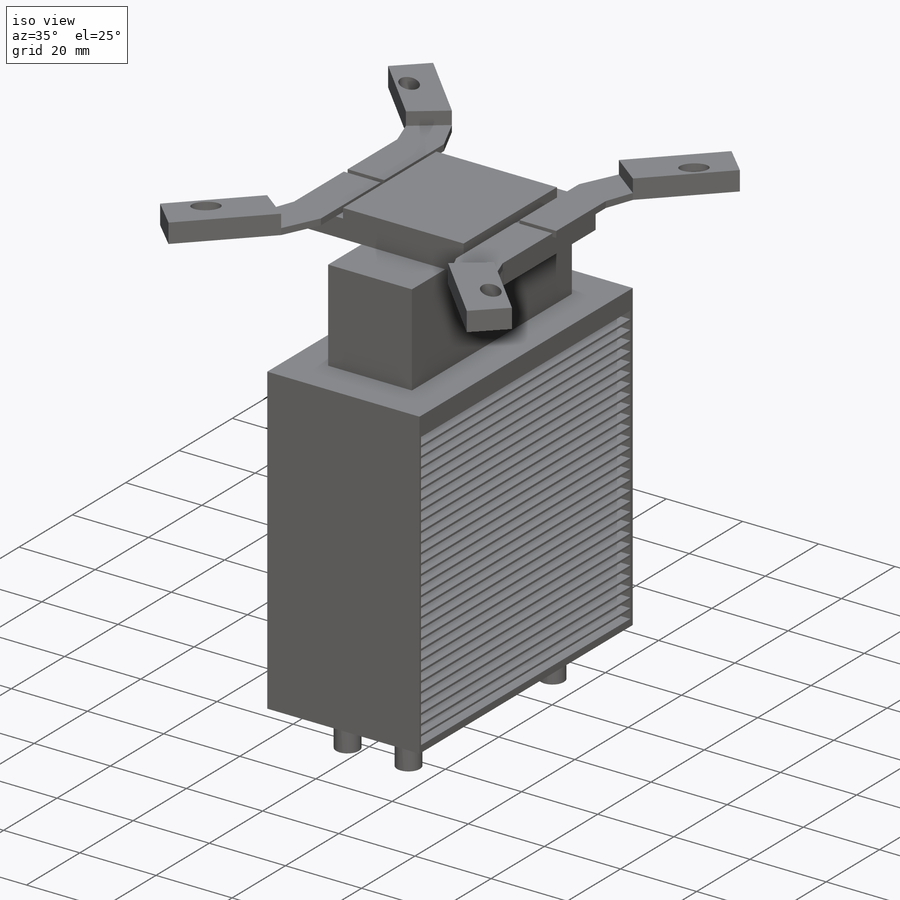
[diagram: iso view]
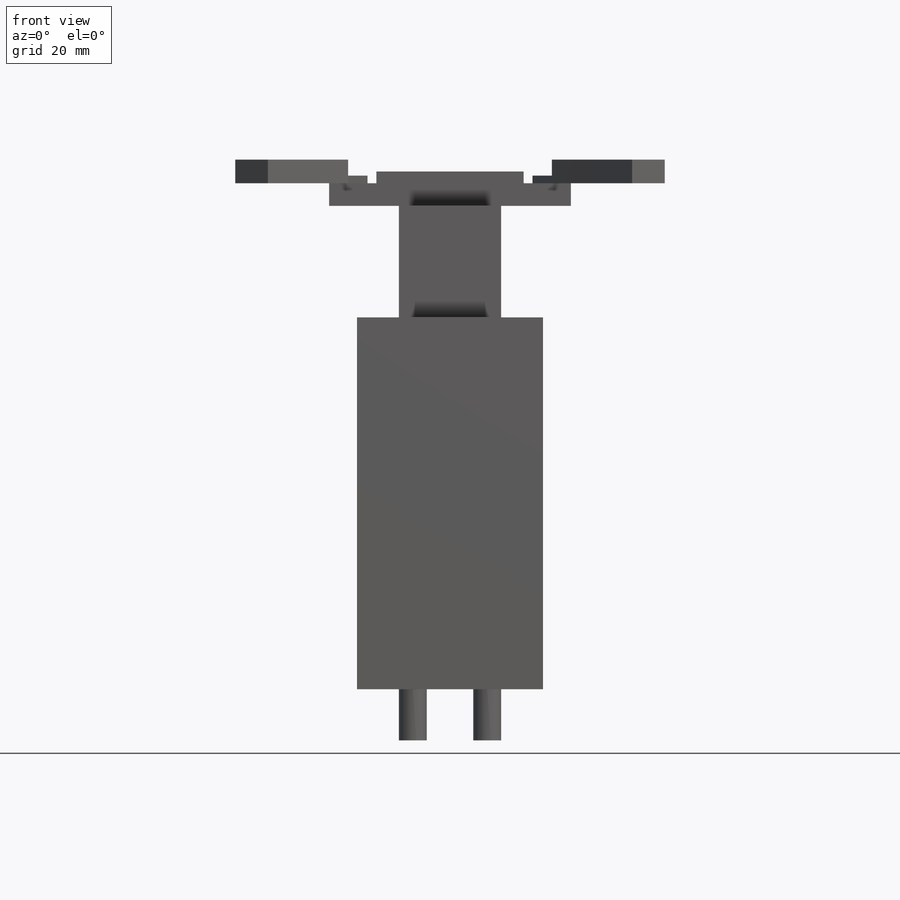
[diagram: front view]
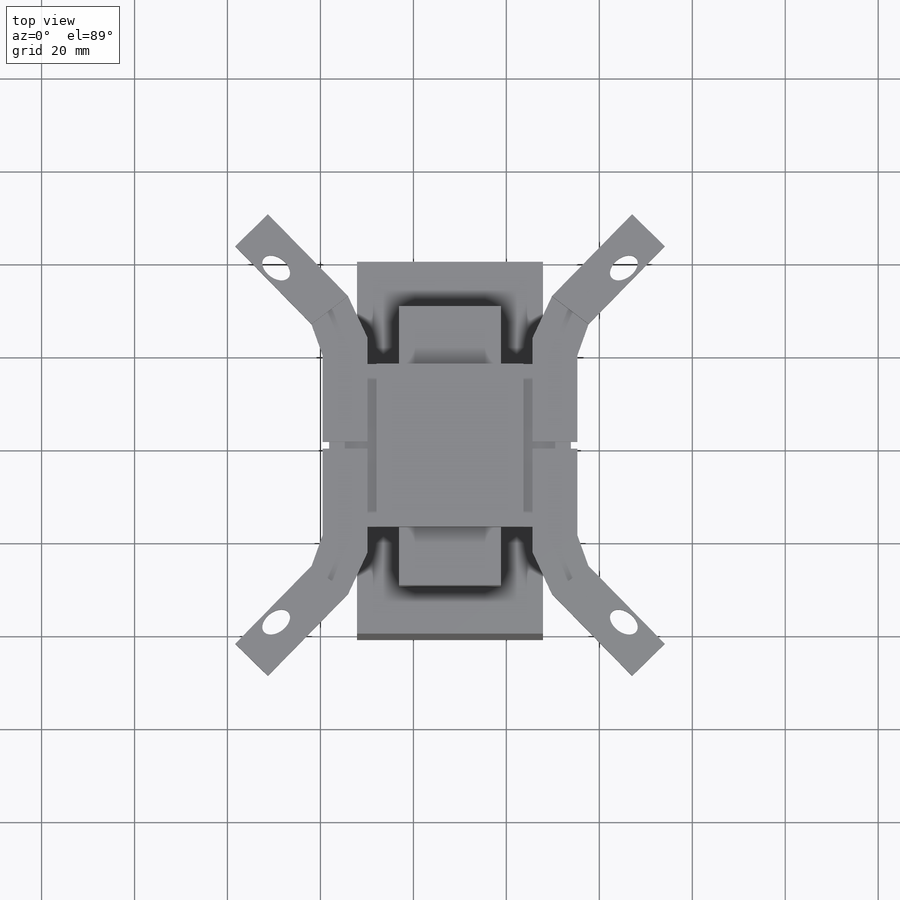
[diagram: top view]
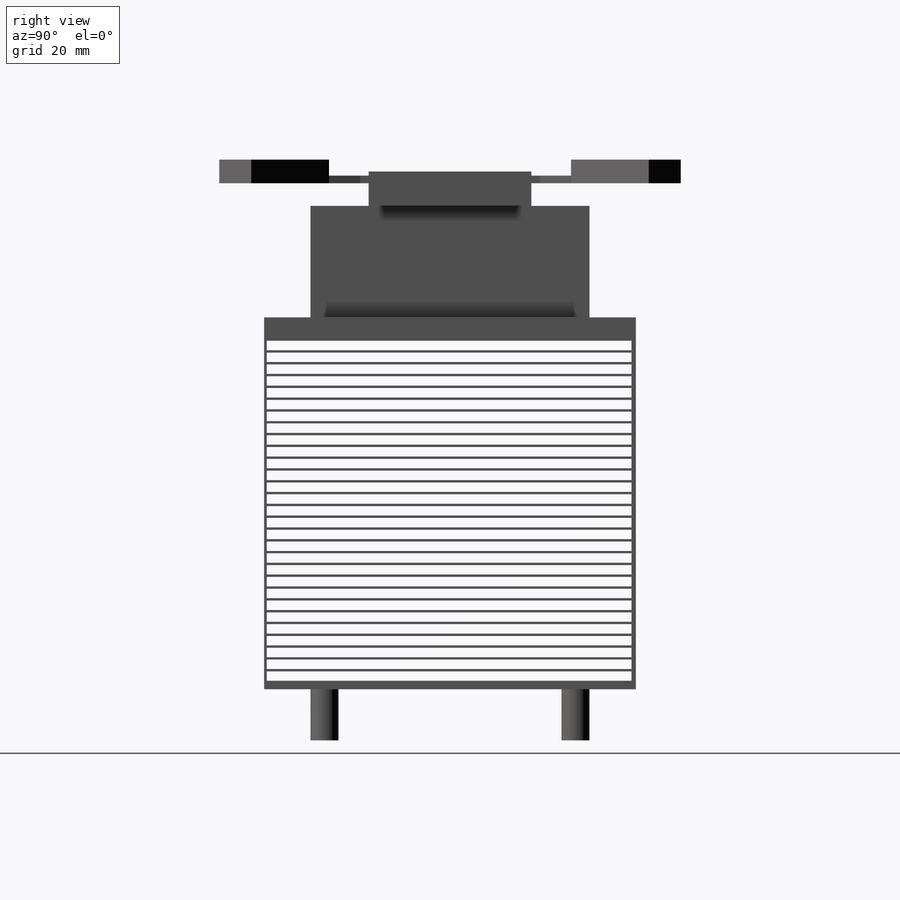
[diagram: right view]
SOLIDWORKS PART (.sldprt)
format: sldprt  version: not decoded by parser v0  size: 514,560 bytes
history: native  units: mm
features: sketch x9, extrude x7, material x1, cut_extrude x1 (+16 scaffold rows collapsed)
feature tree (34):
  scaffold x16  (default folders/planes/origin — collapsed)
  material  "Material <not specified>"
  sketch  "Sketch1"  dims[D1=40.0mm D2=80.0mm]
  extrude  "Boss-Extrude1"  Depth=80mm
  sketch  "Sketch2"  dims[D1=12.0mm D2=12.0mm D3=13.0mm D4=13.0mm D5=13.0mm D6=13.0mm D7=12.0mm D8=12.0mm]
  extrude  "Boss-Extrude2"  Depth=11mm
  sketch  "Sketch3"  dims[D1=13.0mm D2=13.0mm D3=13.0mm D4=13.0mm D5=12.0mm D6=12.0mm D7=12.0mm D8=12.0mm]
  sketch  "Sketch7"
  extrude  "Boss-Extrude4"  Depth=24mm
  sketch  "Sketch8"  dims[D1=52.0mm D2=35.0mm D3=40.0mm D4=20.0mm D5=20.0mm]
  extrude  "Boss-Extrude5"  Depth=4.86mm
  sketch  "Sketch9"  dims[c1.D1=10.16mm c1.D2=10.16mm c1.D3=31.68mm c2.D3=90.0deg c3.D3=31.68mm c3.D4=35.0mm c3.D5=31.68mm]
  extrude  "Boss-Extrude6"  Depth=2.54mm
  sketch  "Sketch10"  dims[c1.D1=1.905mm c1.D2=9.779mm c1.D3=315.0deg c2.D3=9.8806mm c2.D4=7.112mm c2.D5=0.725mm c2.D6=90.0deg c3.D6=~11.733445mm c3.D7=~11.733445mm c4.D6=15.84mm c4.D7=18.6182mm c4.D8=22.352mm c4.D9=135.0deg c5.D9=17.5mm c5.D10=15.84mm c6.D10=135.0deg c7.D10=18.6182mm c7.D2=9.906mm c8.D10=~16.01411mm c8.D11=~6.486457deg c9.D10=35.0deg c10.D10=9.652mm c10.D11=10.16mm]
  extrude  "Boss-Extrude9"  Depth=1.651mm
  sketch  "Sketch11"  dims[c1.D1=90.0deg c2.D1=15.84mm c2.D2=76.2mm c2.D3=74.803mm c2.D4=135.0deg]
  extrude  "Boss-Extrude10"  Depth=5.08mm
  sketch  "Sketch12"  dims[D1=2.032mm D2=29.0]
  cut_extrude  "Cut-Extrude1"  [1 undecoded]
decode coverage: 15 of 17 modeling features carry decoded parameters
note: ~ marks probable driven/reference dimensions
note: 1 parameter value undecoded
note: suppression state not decoded; provenance and decode notes live in map.json
